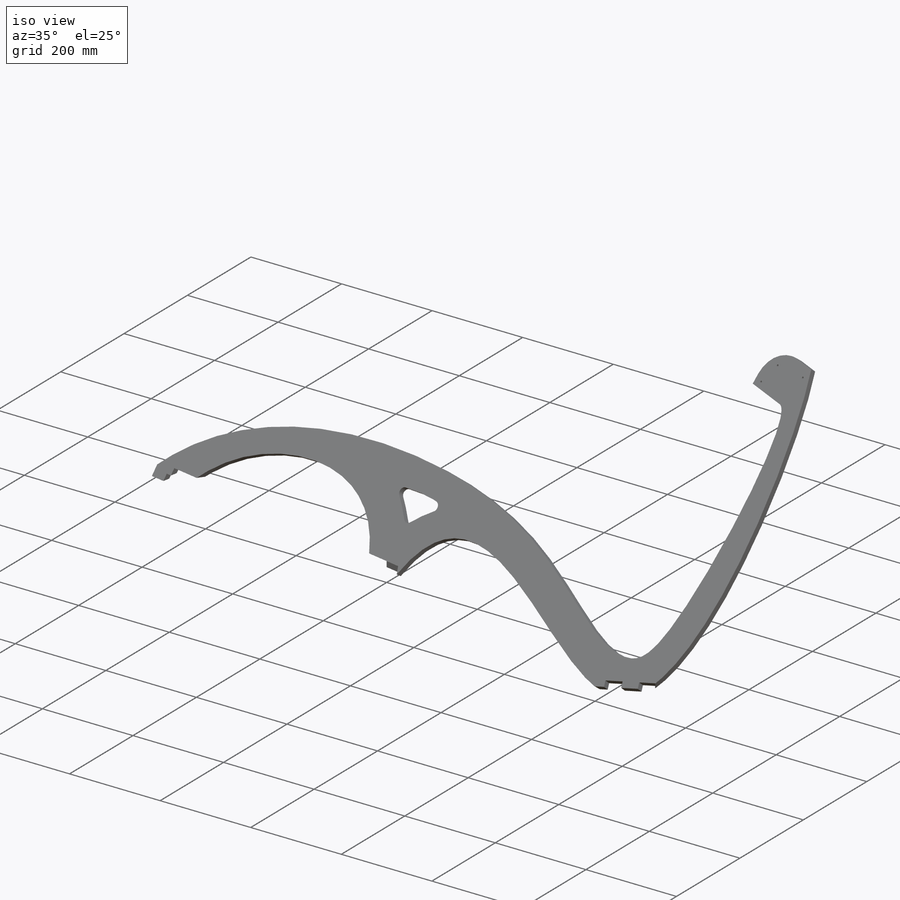
[diagram: iso view]
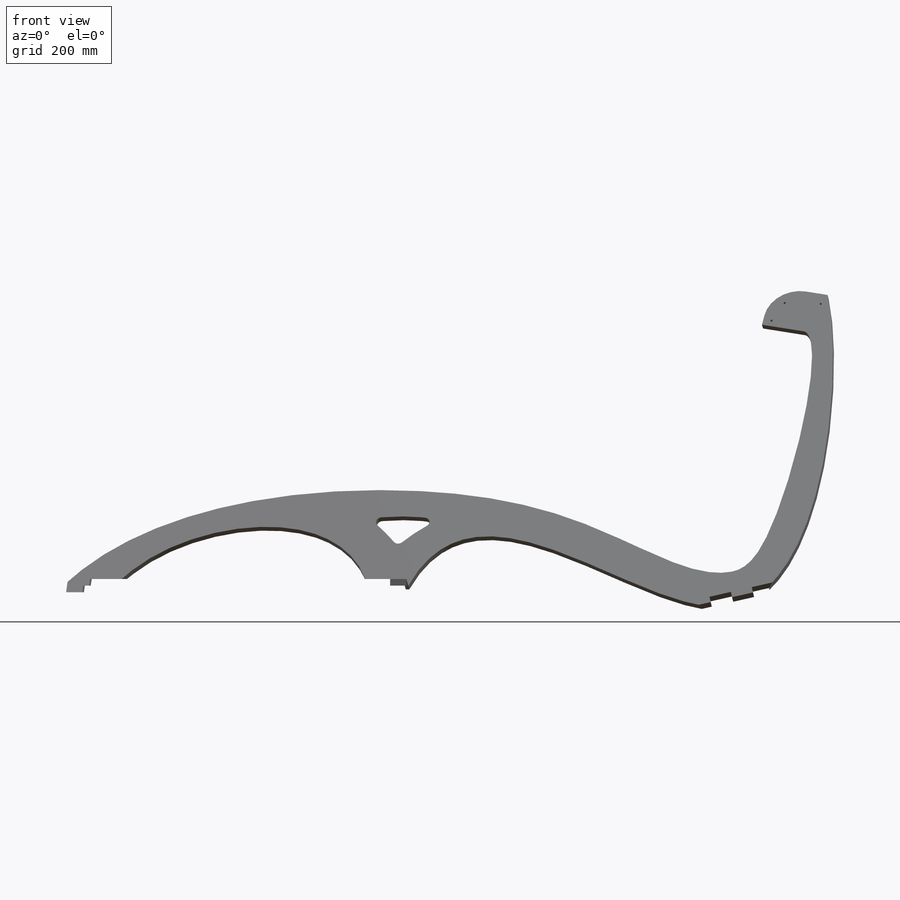
[diagram: front view]
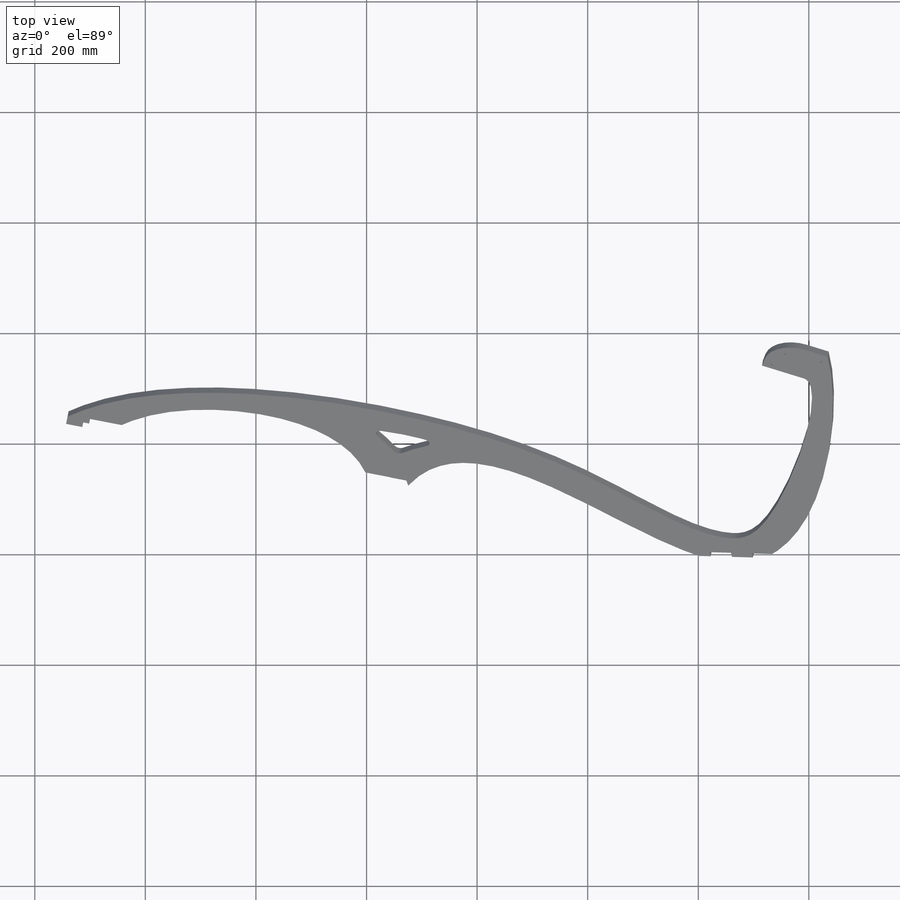
[diagram: top view]
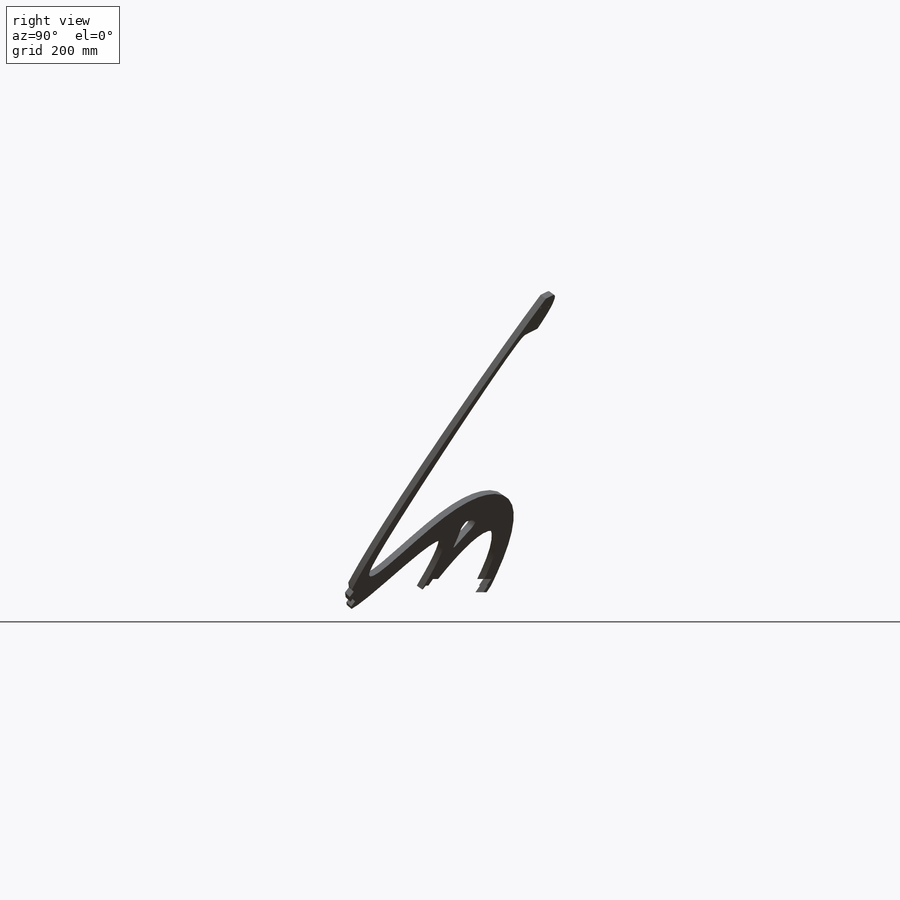
[diagram: right view]
SOLIDWORKS PART (.sldprt)
format: sldprt  version: not decoded by parser v0  size: 898,560 bytes
history: native  units: mm
features: sketch x10, cut_extrude x7, plane x4, fillet x2, material x1, extrude x1 + 1 further entry (+12 scaffold rows collapsed)
feature tree (38):
  scaffold x12  (default folders/planes/origin — collapsed)
  material  "Material <not specified>"
  plane  "Plane1"
  sketch  "Sketch1"  dims[c1.D1=100.0mm c1.D2=80.0mm c1.D3=80.0mm c2.D2=80.0mm c2.D3=80.0mm c2.D4=25.0mm c2.D5=30.0mm]
  plane  "Plane2"
  plane  "Plane3"
  "Axis2"
  sketch  "Sketch2"  dims[c1.D1=25.0mm c1.D2=30.0mm c1.D3=10.0mm c1.D4=25.0mm c1.D5=10.0mm c1.D6=100.0mm c1.D7=150.0mm c1.D8=~119.575999mm c2.D8=75.0deg]
  plane  "Plane4"  Offset=30mm
  sketch  "Sketch4"  dims[D1=~155.722982mm D2=~163.820548mm D3=~58.845848mm D4=~47.582828mm]
  extrude  "Boss-Extrude2"  Depth=12mm
  fillet  "Fillet1"  Radius=60mm
  fillet  "Fillet2"  Radius=30mm
  sketch  "Sketch13"  dims[D1=10.0mm]
  sketch  "Sketch14"  dims[D2=40.0mm D1=0.0mm]
  cut_extrude  "Cut-Extrude1"  Depth=40mm
  sketch  "Sketch15"
  cut_extrude  "Cut-Extrude2"  Depth=30mm
  cut_extrude  "Cut-Extrude3"  Depth=30mm
  sketch  "Sketch16"  dims[D1=0.0mm]
  cut_extrude  "Cut-Extrude6"  Depth=80mm
  sketch  "Sketch17"  dims[D1=0.0mm]
  cut_extrude  "Cut-Extrude7"  Depth=20mm
  sketch  "Sketch18"
  cut_extrude  "Cut-Extrude8"  Depth=20mm
  sketch  "Sketch20"  dims[D7=4.0mm D1=~57.43006mm D2=~18.418204mm D3=~12.679501mm D4=~66.691899mm D5=~43.684371mm D6=~103.179974mm]
  cut_extrude  "Cut-Extrude9"  Depth=30mm
decode coverage: 18 of 20 modeling features carry decoded parameters; 1 rows unclassified (native names shown)
note: ~ marks probable driven/reference dimensions
note: suppression state not decoded; provenance and decode notes live in map.json
